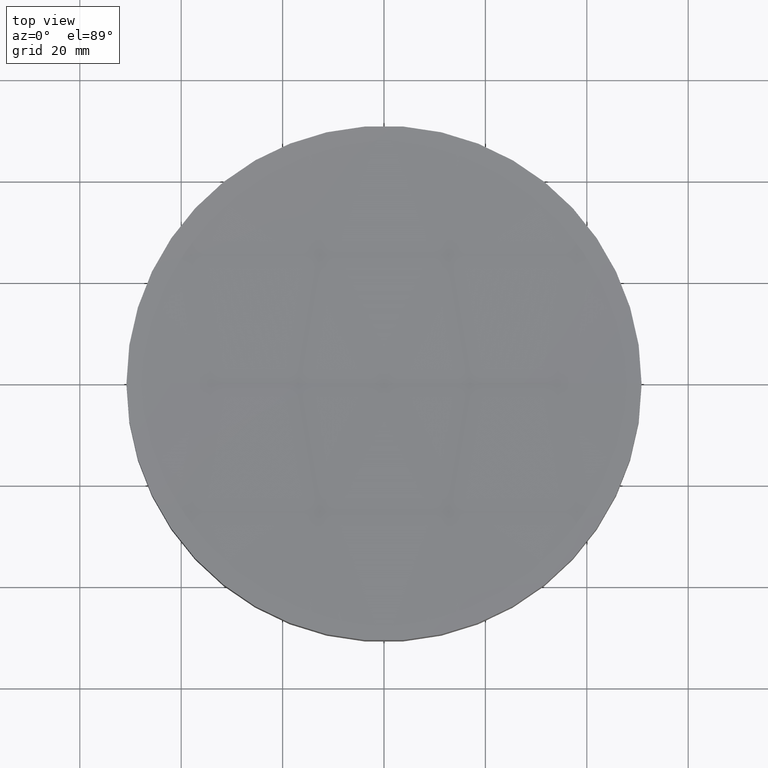
[diagram: clean part render]
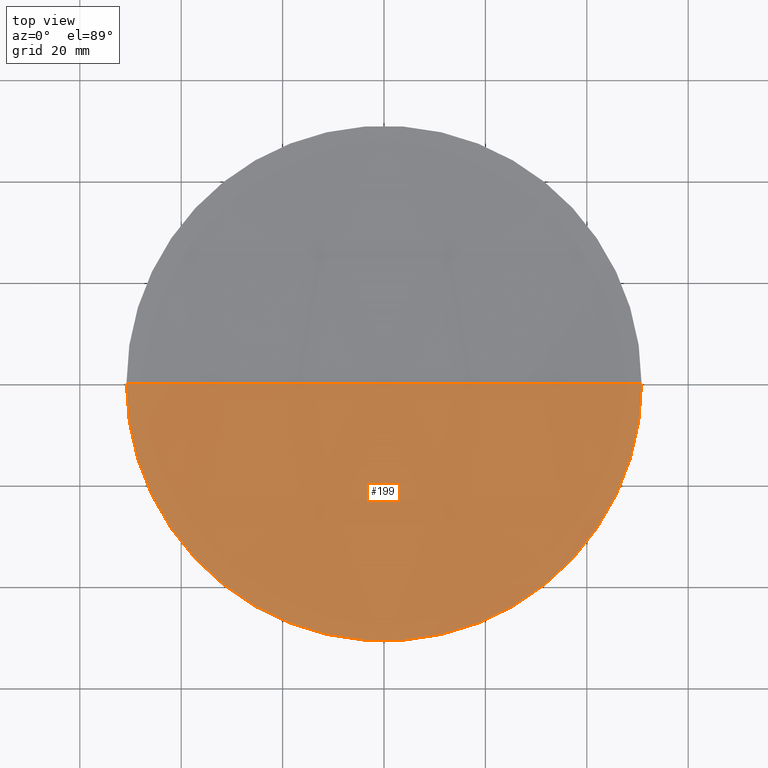
[diagram: same view with one face highlighted and labeled with its STEP entity id]
A machine part, top view. The second image highlights one B-rep face of the part: STEP entity #199.
In plain terms, the highlighted spherical surface has radius 800 mm.
Its self-contained STEP definition (entity closure, byte-faithful):
#12 = AXIS2_PLACEMENT_3D ( 'NONE', #59, #182, #157 ) ;
#21 = ORIENTED_EDGE ( 'NONE', *, *, #28, .F. ) ;
#23 = AXIS2_PLACEMENT_3D ( 'NONE', #168, #45, #171 ) ;
#28 = EDGE_CURVE ( 'NONE', #84, #176, #86, .T. ) ;
#29 = AXIS2_PLACEMENT_3D ( 'NONE', #172, #47, #197 ) ;
#32 = CARTESIAN_POINT ( 'NONE',  ( 50.80000000000032401, 6.221205739668593962E-15, 15.00000000000001421 ) ) ;
#36 = EDGE_CURVE ( 'NONE', #192, #84, #167, .T. ) ;
#45 = DIRECTION ( 'NONE',  ( -0.000000000000000000, -0.000000000000000000, -1.000000000000000000 ) ) ;
#47 = DIRECTION ( 'NONE',  ( 0.000000000000000000, 1.000000000000000000, -0.000000000000000000 ) ) ;
#54 = EDGE_LOOP ( 'NONE', ( #21, #133, #163 ) ) ;
#59 = CARTESIAN_POINT ( 'NONE',  ( 9.714451465470119729E-14, 0.000000000000000000, 813.3854708096836248 ) ) ;
#73 = CARTESIAN_POINT ( 'NONE',  ( 1.461303866205953070E-13, 0.000000000000000000, 13.38547080968355374 ) ) ;
#84 = VERTEX_POINT ( 'NONE', #94 ) ;
#86 = CIRCLE ( 'NONE', #12, 800.0000000000000000 ) ;
#94 = CARTESIAN_POINT ( 'NONE',  ( -50.80000000000013927, 0.000000000000000000, 15.00000000000001421 ) ) ;
#107 = FACE_OUTER_BOUND ( 'NONE', #54, .T. ) ;
#125 = AXIS2_PLACEMENT_3D ( 'NONE', #139, #198, #194 ) ;
#132 = CIRCLE ( 'NONE', #29, 800.0000000000001137 ) ;
#133 = ORIENTED_EDGE ( 'NONE', *, *, #36, .F. ) ;
#138 = SPHERICAL_SURFACE ( 'NONE', #125, 800.0000000000000000 ) ;
#139 = CARTESIAN_POINT ( 'NONE',  ( 9.714451465470119729E-14, 0.000000000000000000, 813.3854708096836248 ) ) ;
#157 = DIRECTION ( 'NONE',  ( 1.000000000000000000, 1.224646799147353207E-16, 0.000000000000000000 ) ) ;
#163 = ORIENTED_EDGE ( 'NONE', *, *, #191, .T. ) ;
#167 = CIRCLE ( 'NONE', #23, 50.80000000000022453 ) ;
#168 = CARTESIAN_POINT ( 'NONE',  ( 9.714451465470119729E-14, 0.000000000000000000, 15.00000000000001421 ) ) ;
#171 = DIRECTION ( 'NONE',  ( 1.000000000000000000, 0.000000000000000000, 0.000000000000000000 ) ) ;
#172 = CARTESIAN_POINT ( 'NONE',  ( 9.714451465470119729E-14, 0.000000000000000000, 813.3854708096836248 ) ) ;
#176 = VERTEX_POINT ( 'NONE', #73 ) ;
#182 = DIRECTION ( 'NONE',  ( 1.224646799147353207E-16, -1.000000000000000000, 0.000000000000000000 ) ) ;
#191 = EDGE_CURVE ( 'NONE', #192, #176, #132, .T. ) ;
#192 = VERTEX_POINT ( 'NONE', #32 ) ;
#194 = DIRECTION ( 'NONE',  ( 1.000000000000000000, 0.000000000000000000, 0.000000000000000000 ) ) ;
#197 = DIRECTION ( 'NONE',  ( 0.000000000000000000, 0.000000000000000000, 1.000000000000000000 ) ) ;
#198 = DIRECTION ( 'NONE',  ( 0.000000000000000000, -1.000000000000000000, -0.000000000000000000 ) ) ;
#199 = ADVANCED_FACE ( 'NONE', ( #107 ), #138, .F. ) ;